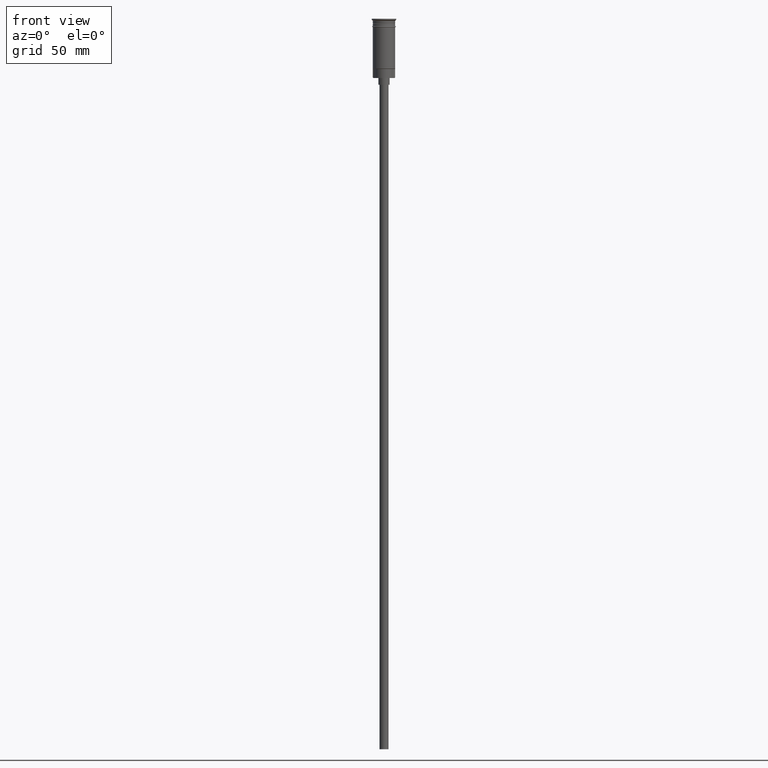
[diagram: clean part render]
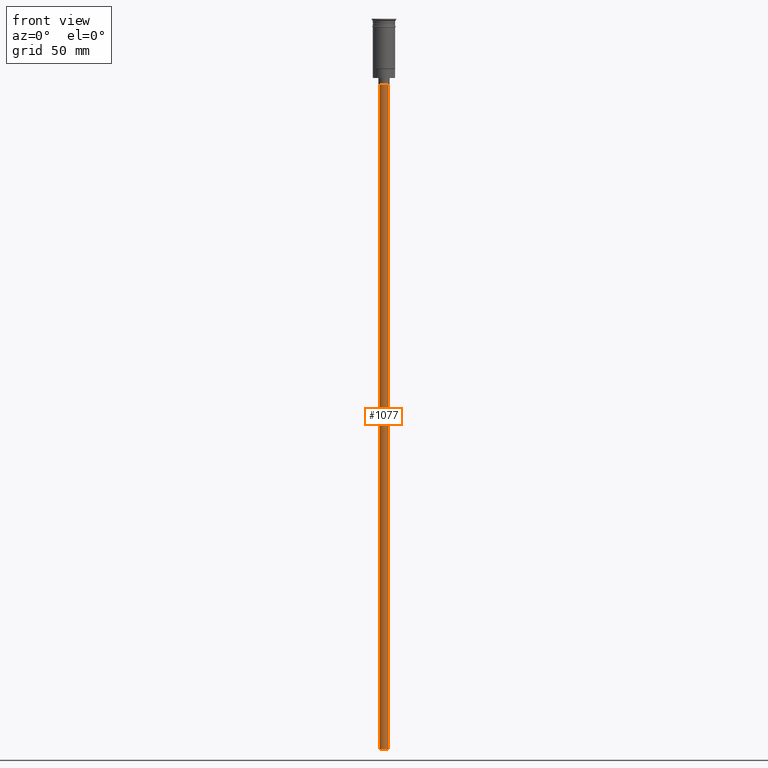
[diagram: same view with one face highlighted and labeled with its STEP entity id]
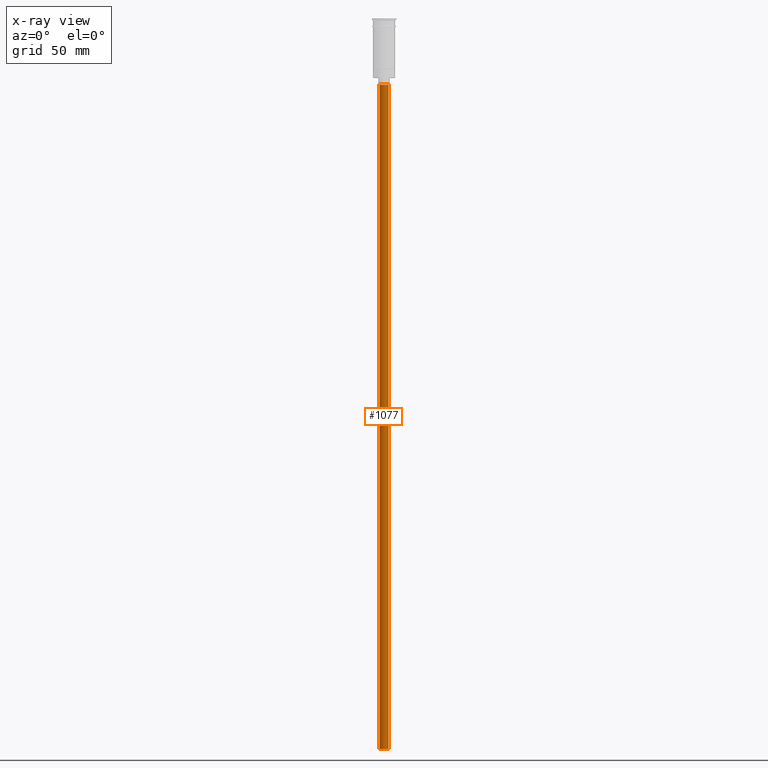
[diagram: x-ray of the same camera — body ghosted, the highlighted face saturated]
A machine part, front view. The second image highlights one B-rep face of the part: STEP entity #1077.
The next image is the same camera in x-ray: the body ghosted, the highlighted face saturated — about 0% of this face is hidden behind the body in this view.
In plain terms, the highlighted cylindrical surface (edge-blend (fillet) strip) has radius 2 mm, axis along (-0, -0, 1).
Its self-contained STEP definition (entity closure, byte-faithful):
#76 = DIRECTION ( 'NONE',  ( -1.000000000000000000, 0.000000000000000000, 0.000000000000000000 ) ) ;
#143 = CARTESIAN_POINT ( 'NONE',  ( 2.000000000000000000, 0.000000000000000000, -29.50000000000000000 ) ) ;
#151 = CIRCLE ( 'NONE', #1031, 2.000000000000000000 ) ;
#192 = CIRCLE ( 'NONE', #588, 2.000000000000000000 ) ;
#303 = CARTESIAN_POINT ( 'NONE',  ( 2.000000000000000000, 0.000000000000000000, -326.5000000000000000 ) ) ;
#374 = VECTOR ( 'NONE', #412, 1000.000000000000000 ) ;
#388 = CARTESIAN_POINT ( 'NONE',  ( -2.000000000000000000, 2.449293598294706414E-16, -326.5000000000000000 ) ) ;
#412 = DIRECTION ( 'NONE',  ( -0.000000000000000000, -0.000000000000000000, 1.000000000000000000 ) ) ;
#427 = LINE ( 'NONE', #1143, #1016 ) ;
#428 = EDGE_CURVE ( 'NONE', #1075, #1021, #192, .T. ) ;
#430 = DIRECTION ( 'NONE',  ( -0.000000000000000000, -0.000000000000000000, 1.000000000000000000 ) ) ;
#446 = DIRECTION ( 'NONE',  ( 0.000000000000000000, 0.000000000000000000, -1.000000000000000000 ) ) ;
#510 = EDGE_CURVE ( 'NONE', #1285, #797, #151, .T. ) ;
#545 = FACE_OUTER_BOUND ( 'NONE', #1503, .T. ) ;
#588 = AXIS2_PLACEMENT_3D ( 'NONE', #1396, #667, #1153 ) ;
#667 = DIRECTION ( 'NONE',  ( 0.000000000000000000, 0.000000000000000000, -1.000000000000000000 ) ) ;
#690 = EDGE_CURVE ( 'NONE', #1021, #797, #1501, .T. ) ;
#797 = VERTEX_POINT ( 'NONE', #1554 ) ;
#858 = ORIENTED_EDGE ( 'NONE', *, *, #510, .T. ) ;
#884 = CYLINDRICAL_SURFACE ( 'NONE', #1249, 2.000000000000000000 ) ;
#1016 = VECTOR ( 'NONE', #1449, 1000.000000000000000 ) ;
#1017 = DIRECTION ( 'NONE',  ( 1.000000000000000000, 0.000000000000000000, 0.000000000000000000 ) ) ;
#1021 = VERTEX_POINT ( 'NONE', #1100 ) ;
#1031 = AXIS2_PLACEMENT_3D ( 'NONE', #1530, #446, #76 ) ;
#1075 = VERTEX_POINT ( 'NONE', #303 ) ;
#1077 = ADVANCED_FACE ( 'NONE', ( #545 ), #884, .T. ) ;
#1100 = CARTESIAN_POINT ( 'NONE',  ( -2.000000000000000000, 2.449293598294706414E-16, -326.5000000000000000 ) ) ;
#1143 = CARTESIAN_POINT ( 'NONE',  ( 2.000000000000000000, 0.000000000000000000, -326.5000000000000000 ) ) ;
#1153 = DIRECTION ( 'NONE',  ( -1.000000000000000000, 0.000000000000000000, 0.000000000000000000 ) ) ;
#1232 = ORIENTED_EDGE ( 'NONE', *, *, #1347, .T. ) ;
#1249 = AXIS2_PLACEMENT_3D ( 'NONE', #1525, #430, #1017 ) ;
#1285 = VERTEX_POINT ( 'NONE', #143 ) ;
#1347 = EDGE_CURVE ( 'NONE', #1075, #1285, #427, .T. ) ;
#1392 = ORIENTED_EDGE ( 'NONE', *, *, #428, .F. ) ;
#1396 = CARTESIAN_POINT ( 'NONE',  ( 0.000000000000000000, 0.000000000000000000, -326.5000000000000000 ) ) ;
#1449 = DIRECTION ( 'NONE',  ( -0.000000000000000000, -0.000000000000000000, 1.000000000000000000 ) ) ;
#1495 = ORIENTED_EDGE ( 'NONE', *, *, #690, .F. ) ;
#1501 = LINE ( 'NONE', #388, #374 ) ;
#1503 = EDGE_LOOP ( 'NONE', ( #1495, #1392, #1232, #858 ) ) ;
#1525 = CARTESIAN_POINT ( 'NONE',  ( 0.000000000000000000, 0.000000000000000000, -326.5000000000000000 ) ) ;
#1530 = CARTESIAN_POINT ( 'NONE',  ( 0.000000000000000000, 0.000000000000000000, -29.50000000000000000 ) ) ;
#1554 = CARTESIAN_POINT ( 'NONE',  ( -2.000000000000000000, 2.449293598294706414E-16, -29.50000000000000000 ) ) ;